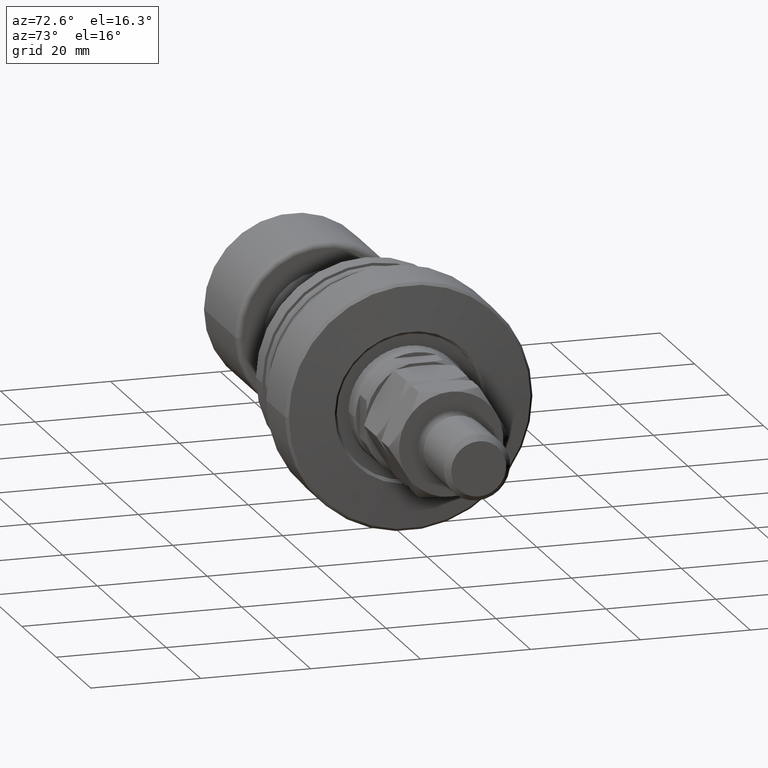
[diagram: clean part render]
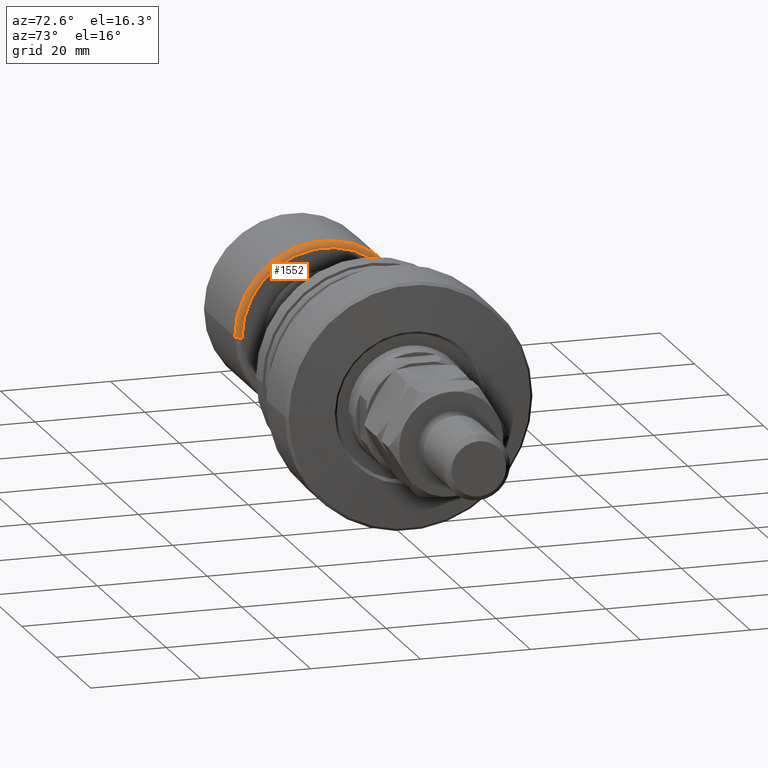
[diagram: same view with one face highlighted and labeled with its STEP entity id]
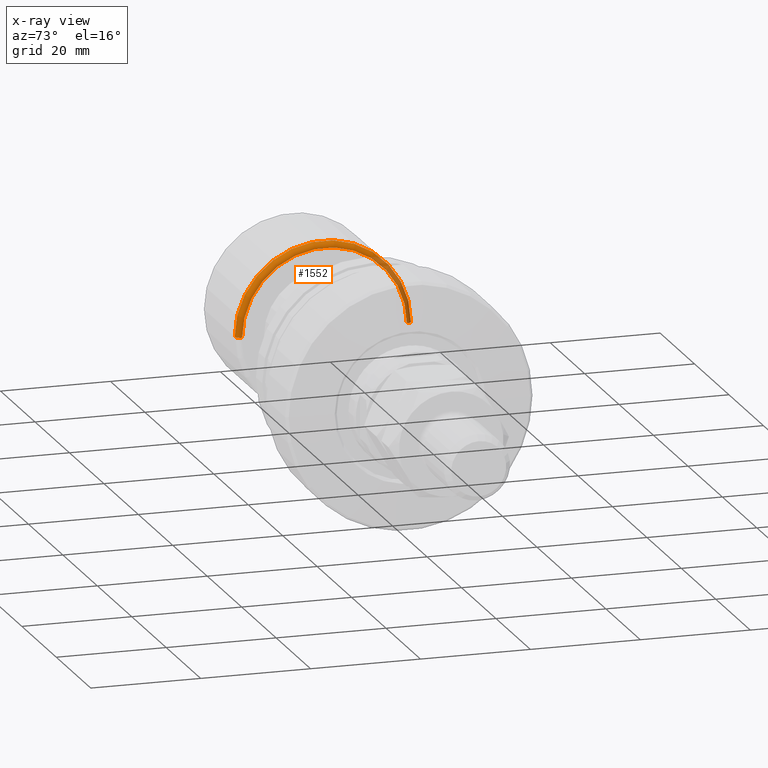
[diagram: x-ray of the same camera — body ghosted, the highlighted face saturated]
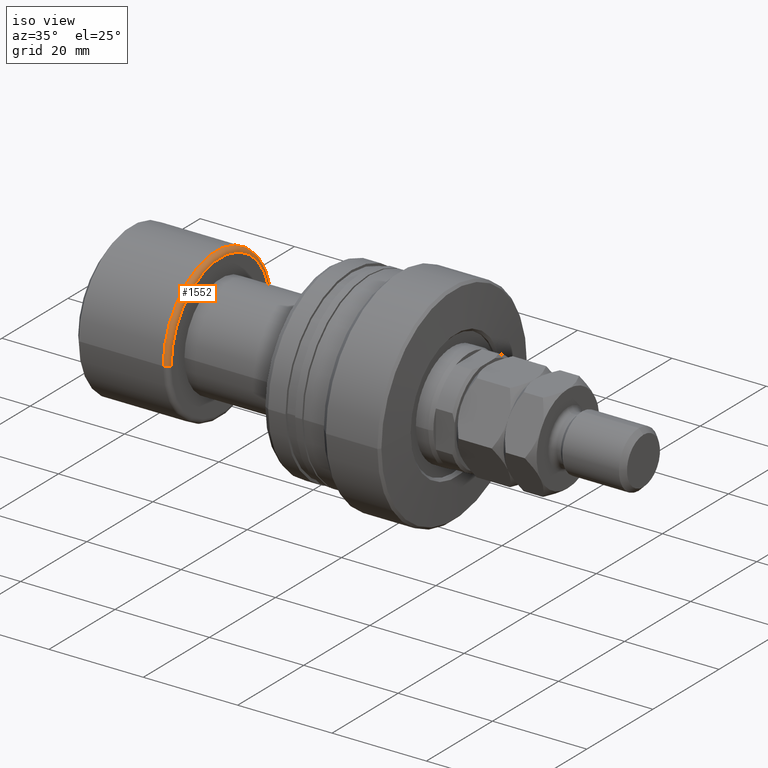
[diagram: same view with one face highlighted and labeled with its STEP entity id]
A machine part, auxiliary view. The second image highlights one B-rep face of the part: STEP entity #1552.
The next image is the same camera in x-ray: the body ghosted, the highlighted face saturated — about 22% of this face is hidden behind the body in this view.
A second angle (iso view) of the same face is appended — the face is thin or edge-on in the first view.
In plain terms, the highlighted toroidal blend (fillet) surface has major radius 15 mm and minor (blend) radius 1 mm.
Its self-contained STEP definition (entity closure, byte-faithful):
#42 = ORIENTED_EDGE ( 'NONE', *, *, #800, .T. ) ;
#52 = CARTESIAN_POINT ( 'NONE',  ( 19.39999999999999858, 0.000000000000000000, 0.000000000000000000 ) ) ;
#131 = AXIS2_PLACEMENT_3D ( 'NONE', #52, #1649, #351 ) ;
#160 = ORIENTED_EDGE ( 'NONE', *, *, #258, .F. ) ;
#167 = CARTESIAN_POINT ( 'NONE',  ( 20.39999999999999858, 15.00000000000000000, 1.898202538678397163E-15 ) ) ;
#203 = EDGE_CURVE ( 'NONE', #2339, #1270, #1356, .T. ) ;
#258 = EDGE_CURVE ( 'NONE', #2339, #1120, #262, .T. ) ;
#262 = CIRCLE ( 'NONE', #3238, 1.000000000000000888 ) ;
#351 = DIRECTION ( 'NONE',  ( 1.069542322069065801E-17, -1.000000000000000000, 0.000000000000000000 ) ) ;
#606 = DIRECTION ( 'NONE',  ( 0.000000000000000000, 0.000000000000000000, -1.000000000000000000 ) ) ;
#800 = EDGE_CURVE ( 'NONE', #1270, #1848, #3242, .T. ) ;
#845 = AXIS2_PLACEMENT_3D ( 'NONE', #1656, #3116, #1249 ) ;
#912 = AXIS2_PLACEMENT_3D ( 'NONE', #2799, #2501, #4013 ) ;
#921 = TOROIDAL_SURFACE ( 'NONE', #131, 15.00000000000000000, 1.000000000000000888 ) ;
#1086 = EDGE_LOOP ( 'NONE', ( #1984, #42, #2360, #160 ) ) ;
#1120 = VERTEX_POINT ( 'NONE', #1570 ) ;
#1249 = DIRECTION ( 'NONE',  ( 0.000000000000000000, -1.000000000000000000, -1.224646799147353454E-16 ) ) ;
#1270 = VERTEX_POINT ( 'NONE', #167 ) ;
#1320 = DIRECTION ( 'NONE',  ( -1.000000000000000000, -1.069542322069065801E-17, -0.000000000000000000 ) ) ;
#1356 = CIRCLE ( 'NONE', #912, 15.00000000000000000 ) ;
#1552 = ADVANCED_FACE ( 'NONE', ( #3182 ), #921, .T. ) ;
#1570 = CARTESIAN_POINT ( 'NONE',  ( 19.40000000000000213, -16.00000000000000000, 0.000000000000000000 ) ) ;
#1611 = CARTESIAN_POINT ( 'NONE',  ( 20.39999999999999858, -15.00000000000000000, 0.000000000000000000 ) ) ;
#1649 = DIRECTION ( 'NONE',  ( -1.000000000000000000, -1.069542322069065801E-17, -0.000000000000000000 ) ) ;
#1656 = CARTESIAN_POINT ( 'NONE',  ( 19.39999999999999858, 15.00000000000000000, 1.836970198721029589E-15 ) ) ;
#1810 = DIRECTION ( 'NONE',  ( -1.000000000000000000, 0.000000000000000000, 0.000000000000000000 ) ) ;
#1848 = VERTEX_POINT ( 'NONE', #2148 ) ;
#1984 = ORIENTED_EDGE ( 'NONE', *, *, #203, .T. ) ;
#1986 = CARTESIAN_POINT ( 'NONE',  ( 19.40000000000000213, 2.074912104813987675E-16, 0.000000000000000000 ) ) ;
#2115 = CARTESIAN_POINT ( 'NONE',  ( 19.39999999999999858, -15.00000000000000000, 0.000000000000000000 ) ) ;
#2148 = CARTESIAN_POINT ( 'NONE',  ( 19.40000000000000213, 16.00000000000000000, 1.959434878635765131E-15 ) ) ;
#2320 = EDGE_CURVE ( 'NONE', #1120, #1848, #3395, .T. ) ;
#2339 = VERTEX_POINT ( 'NONE', #1611 ) ;
#2360 = ORIENTED_EDGE ( 'NONE', *, *, #2320, .F. ) ;
#2501 = DIRECTION ( 'NONE',  ( -1.000000000000000000, -1.069542322069065801E-17, -0.000000000000000000 ) ) ;
#2799 = CARTESIAN_POINT ( 'NONE',  ( 20.39999999999999858, 2.181866337020894116E-16, 0.000000000000000000 ) ) ;
#3116 = DIRECTION ( 'NONE',  ( 1.309811581274509052E-33, -1.224646799147353207E-16, 1.000000000000000000 ) ) ;
#3182 = FACE_OUTER_BOUND ( 'NONE', #1086, .T. ) ;
#3238 = AXIS2_PLACEMENT_3D ( 'NONE', #2115, #606, #1810 ) ;
#3242 = CIRCLE ( 'NONE', #845, 1.000000000000000888 ) ;
#3395 = CIRCLE ( 'NONE', #3655, 16.00000000000000000 ) ;
#3475 = DIRECTION ( 'NONE',  ( 0.000000000000000000, -1.000000000000000000, 0.000000000000000000 ) ) ;
#3655 = AXIS2_PLACEMENT_3D ( 'NONE', #1986, #1320, #3475 ) ;
#4013 = DIRECTION ( 'NONE',  ( 0.000000000000000000, -1.000000000000000000, 0.000000000000000000 ) ) ;